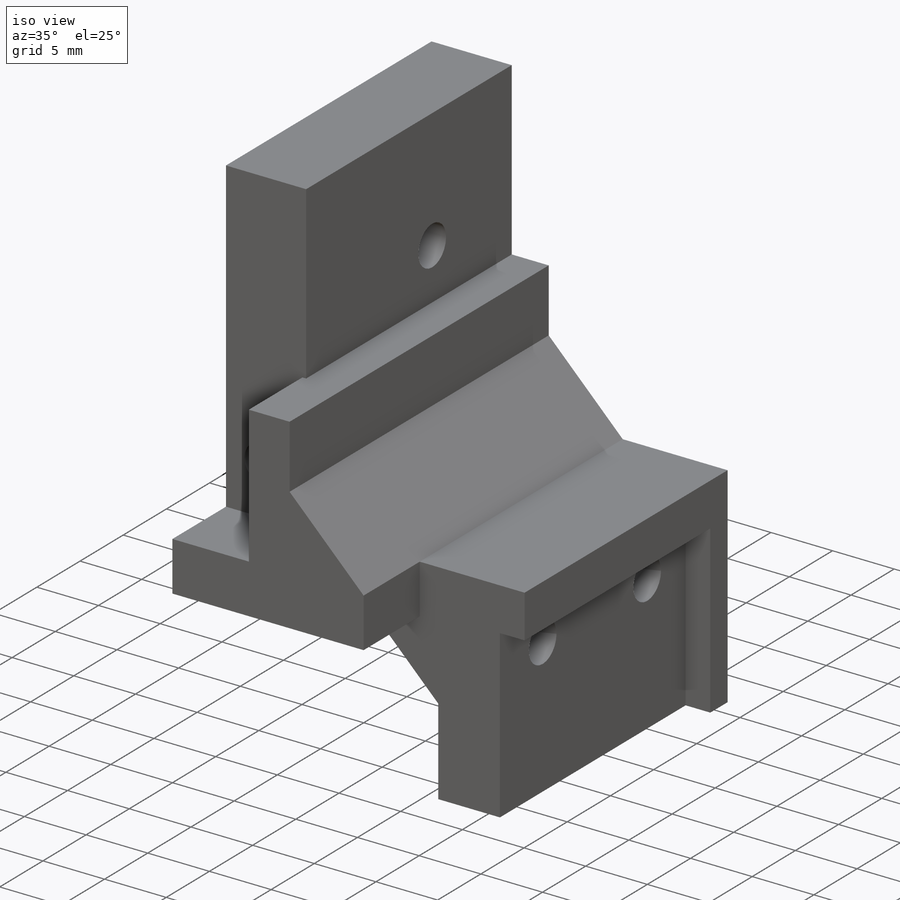
[diagram: iso view]
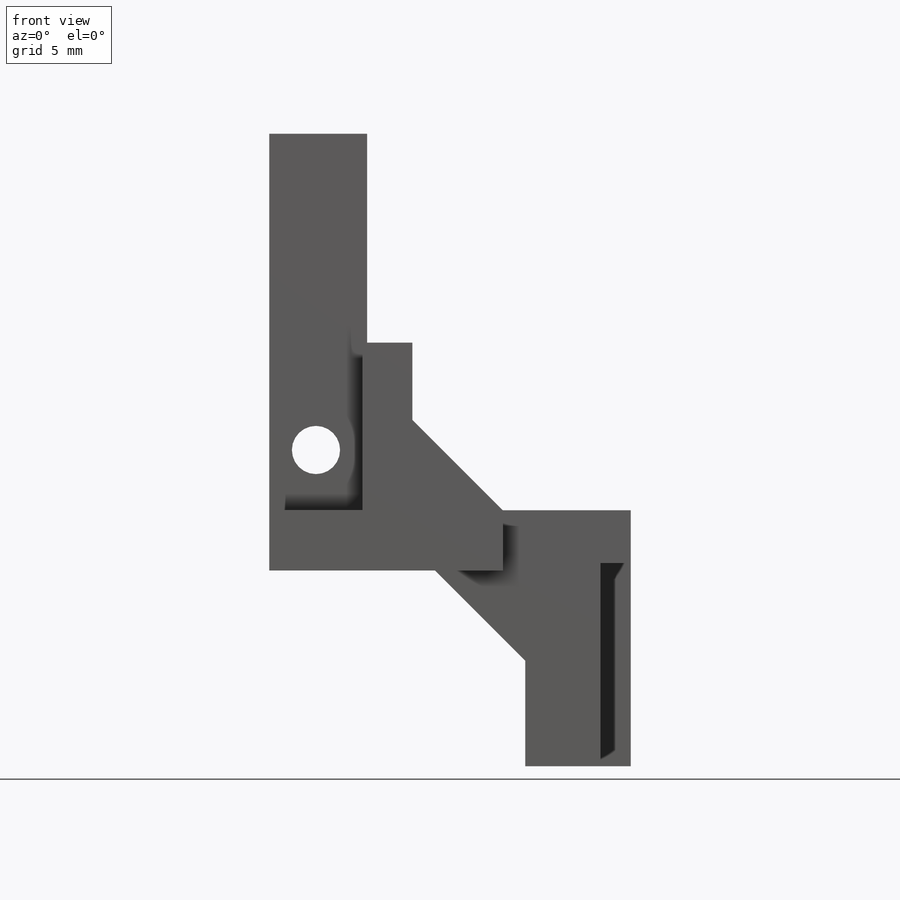
[diagram: front view]
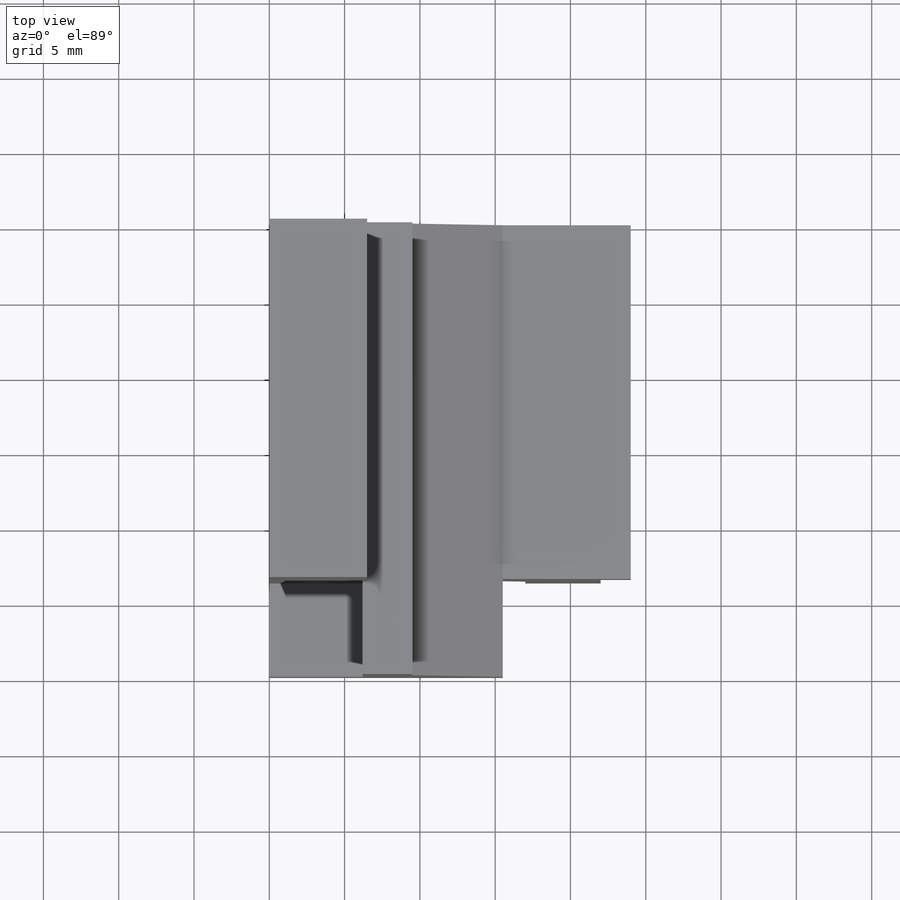
[diagram: top view]
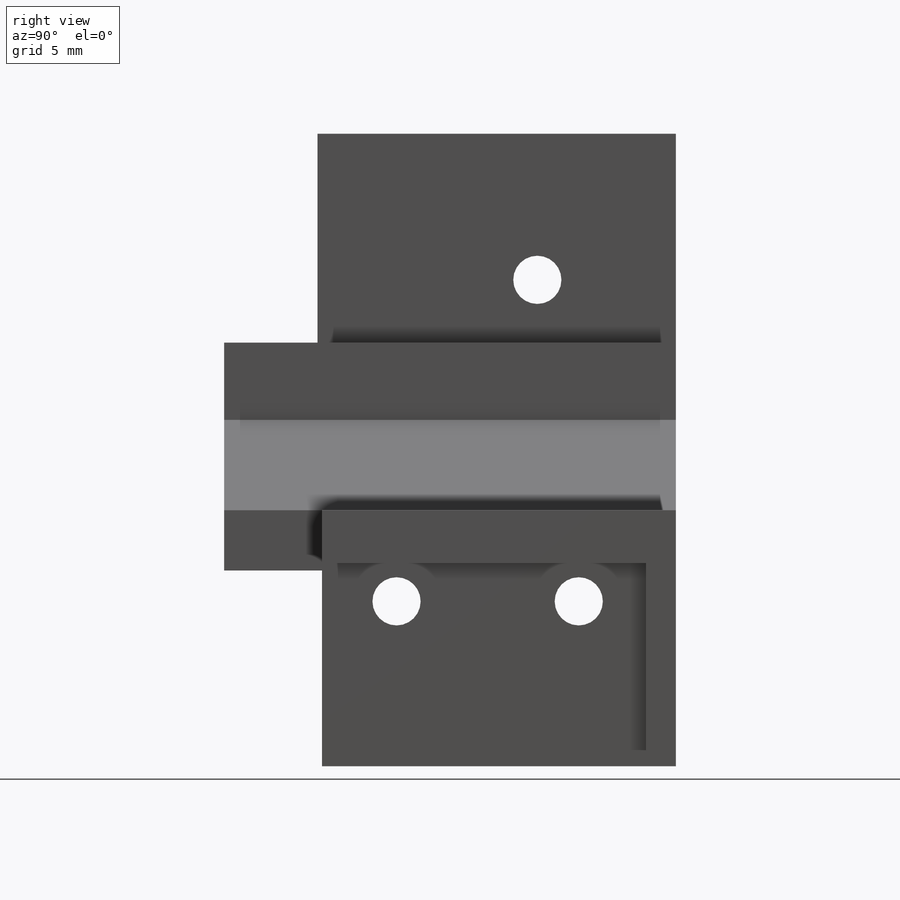
[diagram: right view]
SOLIDWORKS PART (.sldprt)
format: sldprt  version: not decoded by parser v0  size: 358,912 bytes
history: native  units: mm
features: sketch x11, cut_extrude x9, plane x3, extrude x2, material x1 (+13 scaffold rows collapsed)
feature tree (39):
  scaffold x13  (default folders/planes/origin — collapsed)
  material  "Material <sin especificar>"
  plane  "Alzado"
  plane  "Planta"
  plane  "Vista lateral"
  sketch  "Croquis1"  dims[c1.D1=27.0mm c1.D2=25.0mm c1.D3=18.0mm c1.D4=7.0mm c1.D5=7.0mm c1.D6=50.0mm c2.D4=10.0mm c2.D6=10.0mm c2.D1=24.0mm c2.D2=7.0mm c2.D3=4.0mm c3.D4=25.0mm c3.D5=6.5mm c3.D6=~2.598961mm c4.D6=135.0deg c4.D7=17.0mm c4.D8=6.0mm c4.D9=3.0mm c4.D10=11.13mm c4.D11=~5.083119mm c5.D11=135.0deg c5.D12=6.0mm]
  extrude  "Saliente-Extruir1"  Depth=2mm
  sketch  "Croquis5"  dims[D2=13.5mm D3=2.0mm D1=0.0mm]
  extrude  "Saliente-Extruir4"  Depth=28mm
  sketch  "Croquis6"  dims[D1=6.2mm]
  cut_extrude  "Cortar-Extruir2"  Depth=6.2mm
  sketch  "Croquis7"  dims[D3=3.2mm D1=6.05mm D2=11.45mm D4=12.1mm]
  cut_extrude  "Cortar-Extruir3"  [1 undecoded]
  sketch  "Croquis8"  dims[D1=3.2mm D2=4.0mm]
  cut_extrude  "Cortar-Extruir4"  [1 undecoded]
  sketch  "Croquis9"  dims[D1=5.7mm]
  cut_extrude  "Cortar-Extruir5"  Depth=7mm
  sketch  "Croquis10"  dims[D1=5.7mm]
  cut_extrude  "Cortar-Extruir6"  Depth=2.5mm
  sketch  "Croquis11"
  cut_extrude  "Cortar-Extruir7"  [1 undecoded]
  sketch  "Croquis12"  dims[D2=3.2mm D1=9.2mm D3=9.7mm]
  cut_extrude  "Cortar-Extruir8"  [1 undecoded]
  sketch  "Croquis13"  dims[D1=5.7mm]
  cut_extrude  "Cortar-Extruir9"  Depth=3mm
  sketch  "Croquis14"  dims[D1=0.0mm]
  cut_extrude  "Cortar-Extruir10"  Depth=6.5mm
decode coverage: 17 of 22 modeling features carry decoded parameters
note: ~ marks probable driven/reference dimensions
note: 4 parameter values undecoded
summary: no parameter record found for 4 features
note: suppression state not decoded; provenance and decode notes live in map.json
